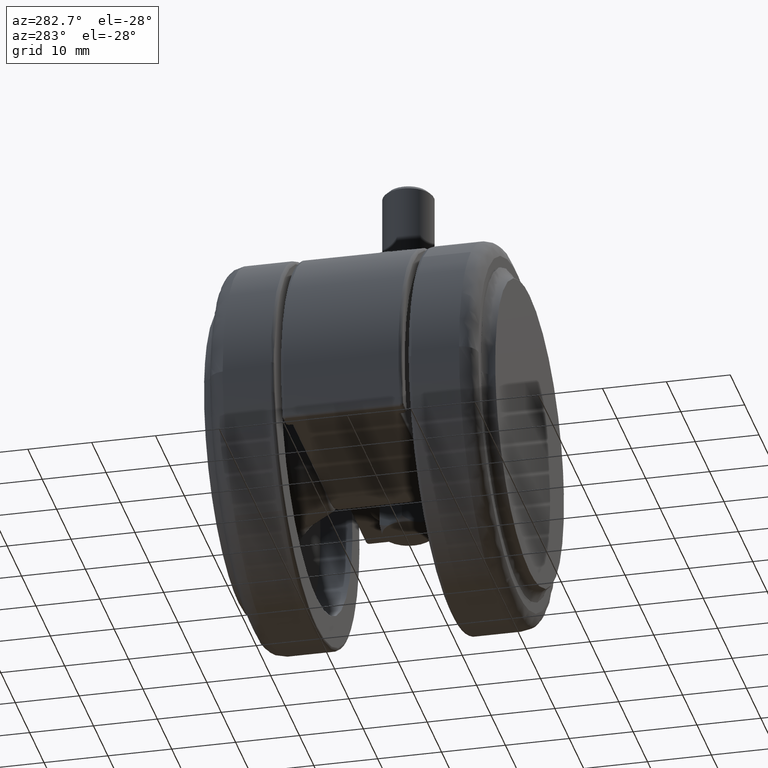
[diagram: clean part render]
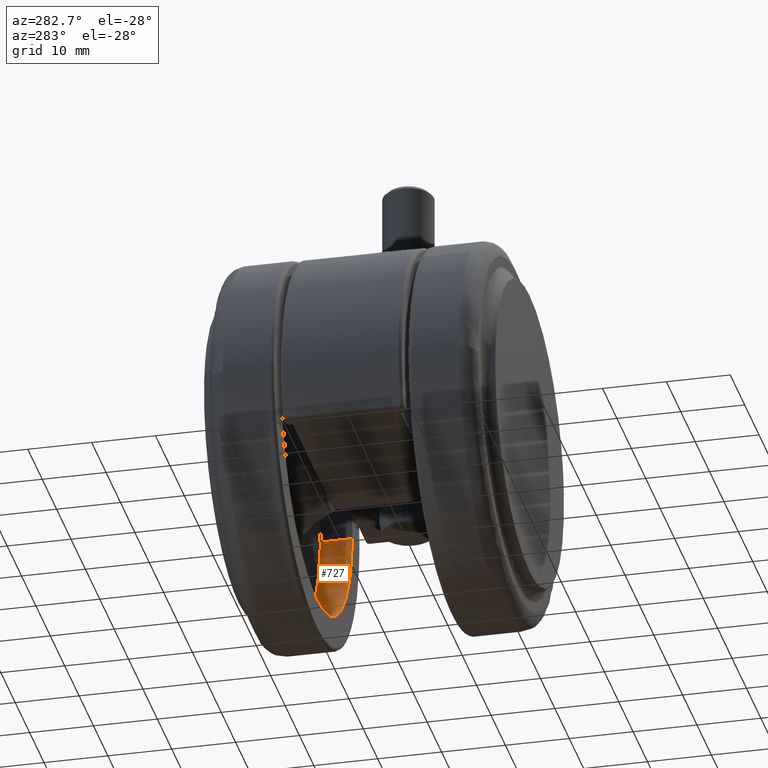
[diagram: same view with one face highlighted and labeled with its STEP entity id]
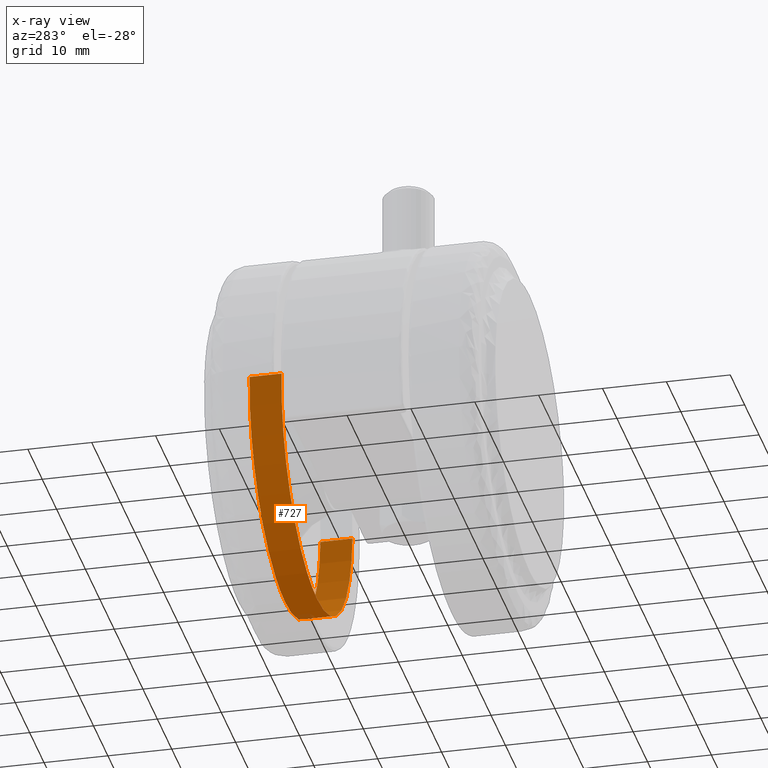
[diagram: x-ray of the same camera — body ghosted, the highlighted face saturated]
A machine part, auxiliary view. The second image highlights one B-rep face of the part: STEP entity #727.
The next image is the same camera in x-ray: the body ghosted, the highlighted face saturated — about 1% of this face is hidden behind the body in this view.
In plain terms, the highlighted face is a freeform B-spline surface patch.
Its self-contained STEP definition (entity closure, byte-faithful):
#590=CARTESIAN_POINT('',(-24.618791379059719,15.500000000000400,1.505729765197701));
#591=VERTEX_POINT('',#590);
#605=CARTESIAN_POINT('',(1.898140E-015,15.500000000000000,-24.664794973643449));
#606=VERTEX_POINT('',#605);
#607=CARTESIAN_POINT('',(-24.618791379059715,15.500000000000400,1.505729765197701));
#608=CARTESIAN_POINT('',(-24.664794973635473,15.500000000000394,0.753567641739989));
#609=CARTESIAN_POINT('',(-24.664794973635601,15.500000000000391,-4.815570E-013));
#610=CARTESIAN_POINT('',(-24.664794973639637,15.500000000000187,-24.664794973643680));
#611=CARTESIAN_POINT('',(1.898140E-015,15.500000000000000,-24.664794973643449));
#619=(BOUNDED_CURVE()B_SPLINE_CURVE(2,(#607,#608,#609,#610,#611),.UNSPECIFIED.,.F.,.U.)B_SPLINE_CURVE_WITH_KNOTS((3,2,3),(0.239333102037472,0.250000000000000,0.500000000000000),.UNSPECIFIED.)CURVE()GEOMETRIC_REPRESENTATION_ITEM()RATIONAL_B_SPLINE_CURVE((0.976072341281761,0.987502951684003,1.0,0.707106781186548,1.0))REPRESENTATION_ITEM(''));
#620=EDGE_CURVE('',#591,#606,#619,.T.);
#622=CARTESIAN_POINT('',(24.618791379059729,15.500000000000391,-1.505729765197698));
#623=VERTEX_POINT('',#622);
#624=CARTESIAN_POINT('',(1.898140E-015,15.500000000000000,-24.664794973643449));
#625=CARTESIAN_POINT('',(23.202341104085146,15.500000000000199,-24.664794973643200));
#626=CARTESIAN_POINT('',(24.618791379059726,15.500000000000400,-1.505729765197698));
#634=(BOUNDED_CURVE()B_SPLINE_CURVE(2,(#624,#625,#626),.UNSPECIFIED.,.F.,.U.)B_SPLINE_CURVE_WITH_KNOTS((3,3),(0.500000000000000,0.739333102037472),.UNSPECIFIED.)CURVE()GEOMETRIC_REPRESENTATION_ITEM()RATIONAL_B_SPLINE_CURVE((1.0,0.719603829502545,0.976072341281761))REPRESENTATION_ITEM(''));
#635=EDGE_CURVE('',#606,#623,#634,.T.);
#661=CARTESIAN_POINT('',(-24.618790159134271,15.625000000000011,1.505749711067614));
#662=CARTESIAN_POINT('',(-26.124539870201886,15.625000000000007,-23.113040448066652));
#663=CARTESIAN_POINT('',(-1.505749711067612,15.625000000000000,-24.618790159134271));
#664=CARTESIAN_POINT('',(23.113040448066652,15.624999999999991,-26.124539870201886));
#665=CARTESIAN_POINT('',(24.618790159134271,15.625000000000000,-1.505749711067614));
#666=CARTESIAN_POINT('',(-24.618790159134271,10.371874999999999,1.505749711067614));
#667=CARTESIAN_POINT('',(-26.124539870201886,10.371875000000003,-23.113040448066652));
#668=CARTESIAN_POINT('',(-1.505749711067612,10.371874999999999,-24.618790159134271));
#669=CARTESIAN_POINT('',(23.113040448066652,10.371874999999996,-26.124539870201886));
#670=CARTESIAN_POINT('',(24.618790159134271,10.371874999999999,-1.505749711067614));
#678=(BOUNDED_SURFACE()B_SPLINE_SURFACE(2,1,((#661,#666),(#662,#667),(#663,#668),(#664,#669),(#665,#670)),.UNSPECIFIED.,.F.,.F.,.U.)B_SPLINE_SURFACE_WITH_KNOTS((3,2,3),(2,2),(0.0,40.865970364939422,81.731940729878843),(0.0,5.253125000000003),.UNSPECIFIED.)GEOMETRIC_REPRESENTATION_ITEM()RATIONAL_B_SPLINE_SURFACE(((1.0,1.0),(0.707106781186548,0.707106781186548),(1.0,1.0),(0.707106781186548,0.707106781186548),(1.0,1.0)))REPRESENTATION_ITEM('')SURFACE());
#679=ORIENTED_EDGE('',*,*,#620,.F.);
#680=CARTESIAN_POINT('',(-24.618791364351079,10.500000000000000,1.505730005688185));
#681=VERTEX_POINT('',#680);
#682=CARTESIAN_POINT('',(-24.618791379059719,15.500000000000400,1.505729765197701));
#683=CARTESIAN_POINT('',(-24.618791364351079,10.500000000000000,1.505730005688185));
#684=QUASI_UNIFORM_CURVE('',1,(#682,#683),.UNSPECIFIED.,.F.,.U.);
#685=EDGE_CURVE('',#591,#681,#684,.T.);
#686=ORIENTED_EDGE('',*,*,#685,.T.);
#687=CARTESIAN_POINT('',(1.285837E-015,10.500000000000000,-24.664794973643449));
#688=VERTEX_POINT('',#687);
#689=CARTESIAN_POINT('',(-24.618791364351079,10.500000000000000,1.505730005688186));
#690=CARTESIAN_POINT('',(-24.664794973635679,10.500000000000005,0.753567762322385));
#691=CARTESIAN_POINT('',(-24.664794973635789,10.500000000000000,-4.671211E-013));
#692=CARTESIAN_POINT('',(-24.664794973639736,10.500000000000002,-24.664794973643666));
#693=CARTESIAN_POINT('',(1.285837E-015,10.500000000000000,-24.664794973643449));
#701=(BOUNDED_CURVE()B_SPLINE_CURVE(2,(#689,#690,#691,#692,#693),.UNSPECIFIED.,.F.,.U.)B_SPLINE_CURVE_WITH_KNOTS((3,2,3),(0.239333100351936,0.250000000000000,0.500000000000000),.UNSPECIFIED.)CURVE()GEOMETRIC_REPRESENTATION_ITEM()RATIONAL_B_SPLINE_CURVE((0.976072337669331,0.987502949709274,1.0,0.707106781186548,1.0))REPRESENTATION_ITEM(''));
#702=EDGE_CURVE('',#681,#688,#701,.T.);
#703=ORIENTED_EDGE('',*,*,#702,.T.);
#704=CARTESIAN_POINT('',(24.618791364351079,10.500000000000000,-1.505730005688185));
#705=VERTEX_POINT('',#704);
#706=CARTESIAN_POINT('',(1.285837E-015,10.500000000000000,-24.664794973643449));
#707=CARTESIAN_POINT('',(23.202340877007924,10.499999999999998,-24.664794973643197));
#708=CARTESIAN_POINT('',(24.618791364351079,10.500000000000000,-1.505730005688186));
#716=(BOUNDED_CURVE()B_SPLINE_CURVE(2,(#706,#707,#708),.UNSPECIFIED.,.F.,.U.)B_SPLINE_CURVE_WITH_KNOTS((3,3),(0.500000000000000,0.739333100351936),.UNSPECIFIED.)CURVE()GEOMETRIC_REPRESENTATION_ITEM()RATIONAL_B_SPLINE_CURVE((1.0,0.719603831477274,0.976072337669331))REPRESENTATION_ITEM(''));
#717=EDGE_CURVE('',#688,#705,#716,.T.);
#718=ORIENTED_EDGE('',*,*,#717,.T.);
#719=CARTESIAN_POINT('',(24.618791379059729,15.500000000000391,-1.505729765197698));
#720=CARTESIAN_POINT('',(24.618791364351079,10.500000000000000,-1.505730005688185));
#721=QUASI_UNIFORM_CURVE('',1,(#719,#720),.UNSPECIFIED.,.F.,.U.);
#722=EDGE_CURVE('',#623,#705,#721,.T.);
#723=ORIENTED_EDGE('',*,*,#722,.F.);
#724=ORIENTED_EDGE('',*,*,#635,.F.);
#725=EDGE_LOOP('',(#679,#686,#703,#718,#723,#724));
#726=FACE_OUTER_BOUND('',#725,.T.);
#727=ADVANCED_FACE('',(#726),#678,.F.);